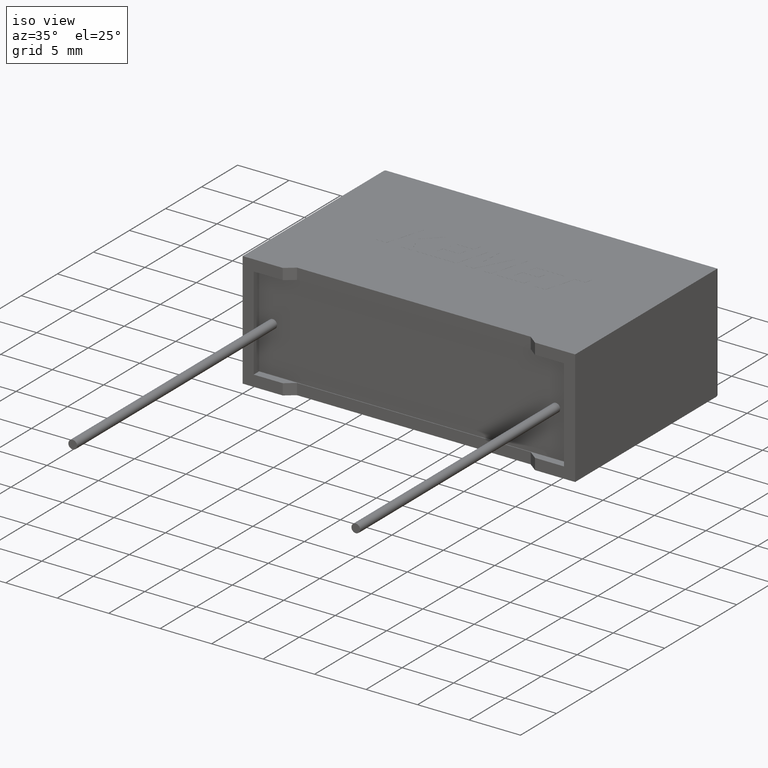
[diagram: clean part render]
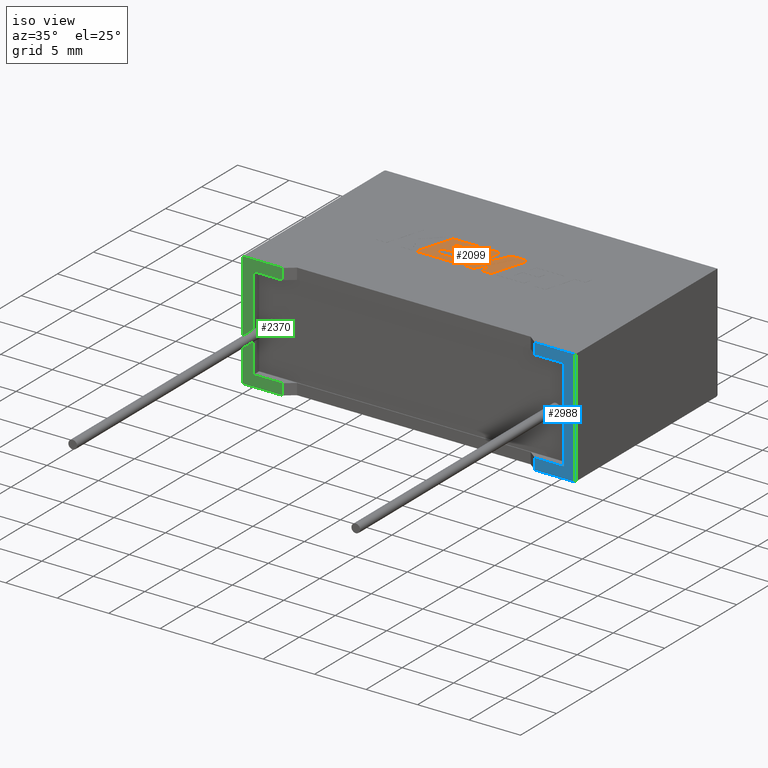
[diagram: same view with three faces highlighted in distinct colors, each labeled with its STEP entity id]
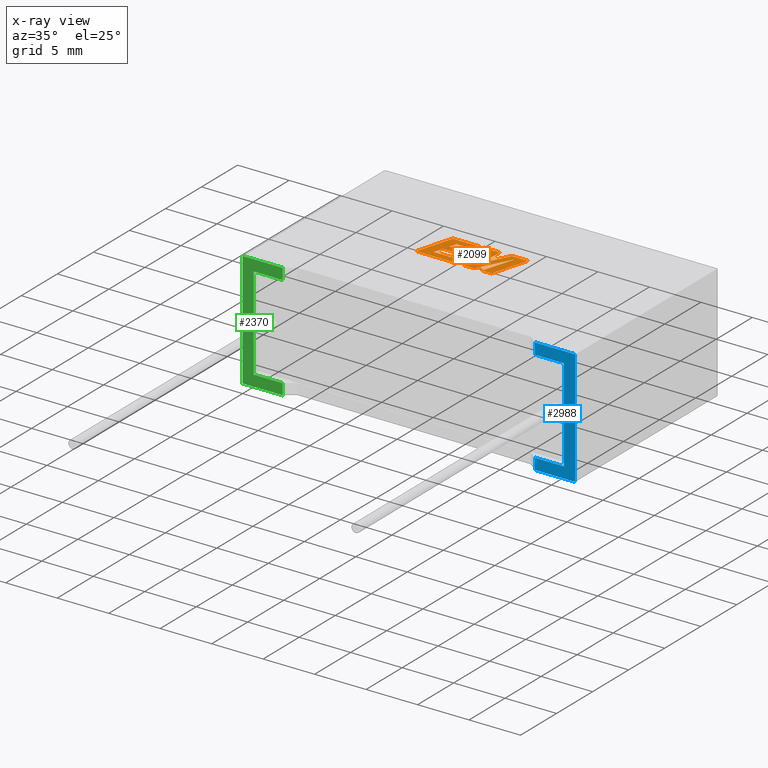
[diagram: x-ray of the same camera — body ghosted, the three highlighted faces saturated]
A machine part, iso view with three faces highlighted in distinct colors.
The next image is the same camera in x-ray (body ghosted, the three faces saturated) — at least one of them is partly hidden behind the body in this view.
Their STEP definitions:

[orange] entity #2099 — the highlighted planar face has unit normal (0, 0, -1).
#11 = LINE ( 'NONE', #172, #151 ) ;
#62 = DIRECTION ( 'NONE',  ( 0.4668459304955081000, 0.8843386665637679200, 0.0000000000000000000 ) ) ;
#66 = DIRECTION ( 'NONE',  ( 1.000000000000000000, 0.0000000000000000000, 0.0000000000000000000 ) ) ;
#80 = VERTEX_POINT ( 'NONE', #253 ) ;
#91 = VECTOR ( 'NONE', #2177, 1000.000000000000200 ) ;
#121 = CARTESIAN_POINT ( 'NONE',  ( 19.14513408663368900, 12.26690045535386600, 11.20500000000000000 ) ) ;
#129 = EDGE_CURVE ( 'NONE', #922, #1970, #2862, .T. ) ;
#142 = VECTOR ( 'NONE', #213, 1000.000000000000100 ) ;
#151 = VECTOR ( 'NONE', #2998, 1000.000000000000100 ) ;
#157 = CARTESIAN_POINT ( 'NONE',  ( 11.84124500571444100, 12.26690045535386600, 11.20500000000000000 ) ) ;
#167 = DIRECTION ( 'NONE',  ( 0.2763139702539113600, 0.9610674221107073900, 0.0000000000000000000 ) ) ;
#168 = ORIENTED_EDGE ( 'NONE', *, *, #1523, .T. ) ;
#172 = CARTESIAN_POINT ( 'NONE',  ( 15.62253906749800900, 11.86992497137884000, 11.20500000000000000 ) ) ;
#180 = EDGE_CURVE ( 'NONE', #3005, #1462, #874, .T. ) ;
#185 = CARTESIAN_POINT ( 'NONE',  ( 12.47426948060323100, 10.90533405807593100, 11.20500000000000000 ) ) ;
#187 = VECTOR ( 'NONE', #2567, 1000.000000000000200 ) ;
#210 = ORIENTED_EDGE ( 'NONE', *, *, #129, .T. ) ;
#213 = DIRECTION ( 'NONE',  ( -0.2762517575166416600, -0.9610853065513833600, 0.0000000000000000000 ) ) ;
#234 = CARTESIAN_POINT ( 'NONE',  ( 14.87486725729231400, 12.26690045535386600, 11.20500000000000000 ) ) ;
#253 = CARTESIAN_POINT ( 'NONE',  ( 16.27645733615719300, 9.682247318116898400, 11.20500000000000000 ) ) ;
#305 = ORIENTED_EDGE ( 'NONE', *, *, #868, .T. ) ;
#309 = LINE ( 'NONE', #1002, #91 ) ;
#315 = DIRECTION ( 'NONE',  ( -1.000000000000000000, 0.0000000000000000000, 0.0000000000000000000 ) ) ;
#326 = CARTESIAN_POINT ( 'NONE',  ( 16.27645733615719300, 9.682247318116898400, 11.20500000000000000 ) ) ;
#337 = ORIENTED_EDGE ( 'NONE', *, *, #354, .T. ) ;
#342 = CARTESIAN_POINT ( 'NONE',  ( 14.31841734785612800, 11.57825739074300800, 11.20500000000000000 ) ) ;
#354 = EDGE_CURVE ( 'NONE', #973, #80, #674, .T. ) ;
#367 = VERTEX_POINT ( 'NONE', #1281 ) ;
#421 = VERTEX_POINT ( 'NONE', #2492 ) ;
#433 = DIRECTION ( 'NONE',  ( 0.2746459304916892800, 0.9615454294334481200, 0.0000000000000000000 ) ) ;
#441 = ORIENTED_EDGE ( 'NONE', *, *, #1945, .T. ) ;
#442 = EDGE_CURVE ( 'NONE', #1565, #2027, #1144, .T. ) ;
#457 = ORIENTED_EDGE ( 'NONE', *, *, #770, .T. ) ;
#460 = VECTOR ( 'NONE', #1991, 1000.000000000000100 ) ;
#463 = DIRECTION ( 'NONE',  ( 1.000000000000000000, 4.783739767952859000E-016, 0.0000000000000000000 ) ) ;
#479 = VERTEX_POINT ( 'NONE', #867 ) ;
#485 = ORIENTED_EDGE ( 'NONE', *, *, #2647, .T. ) ;
#534 = LINE ( 'NONE', #2697, #1865 ) ;
#545 = DIRECTION ( 'NONE',  ( 1.000000000000000000, 0.0000000000000000000, 0.0000000000000000000 ) ) ;
#558 = DIRECTION ( 'NONE',  ( 0.05375259206908576700, 0.9985542843760946100, 0.0000000000000000000 ) ) ;
#565 = VECTOR ( 'NONE', #1586, 1000.000000000000000 ) ;
#567 = VECTOR ( 'NONE', #1992, 1000.000000000000000 ) ;
#581 = CARTESIAN_POINT ( 'NONE',  ( 17.55836071105327500, 12.26690045535386600, 11.20500000000000000 ) ) ;
#584 = EDGE_CURVE ( 'NONE', #367, #922, #752, .T. ) ;
#589 = VERTEX_POINT ( 'NONE', #2838 ) ;
#596 = CARTESIAN_POINT ( 'NONE',  ( 14.69772600633339400, 8.649029999999887900, 11.20500000000000000 ) ) ;
#610 = CARTESIAN_POINT ( 'NONE',  ( 18.10496965447793000, 8.649029999999887900, 11.20500000000000000 ) ) ;
#621 = CARTESIAN_POINT ( 'NONE',  ( 14.51400645488465300, 12.26690045535386600, 11.20500000000000000 ) ) ;
#625 = VERTEX_POINT ( 'NONE', #1696 ) ;
#674 = LINE ( 'NONE', #1512, #2963 ) ;
#708 = DIRECTION ( 'NONE',  ( -1.000000000000000000, 0.0000000000000000000, 0.0000000000000000000 ) ) ;
#737 = EDGE_CURVE ( 'NONE', #1462, #625, #309, .T. ) ;
#752 = LINE ( 'NONE', #1608, #2410 ) ;
#768 = DIRECTION ( 'NONE',  ( -1.000000000000000000, 0.0000000000000000000, 0.0000000000000000000 ) ) ;
#770 = EDGE_CURVE ( 'NONE', #2021, #1891, #2829, .T. ) ;
#772 = CARTESIAN_POINT ( 'NONE',  ( 15.44199866117102900, 8.649029999999887900, 11.20500000000000000 ) ) ;
#774 = EDGE_CURVE ( 'NONE', #2821, #2015, #1015, .T. ) ;
#806 = CARTESIAN_POINT ( 'NONE',  ( 17.18561284736853500, 8.649029999999887900, 11.20500000000000000 ) ) ;
#821 = CARTESIAN_POINT ( 'NONE',  ( 12.28345459587228900, 10.23651391646099300, 11.20500000000000000 ) ) ;
#829 = DIRECTION ( 'NONE',  ( -0.4443210308329518200, -0.8958676361826802800, 0.0000000000000000000 ) ) ;
#838 = VECTOR ( 'NONE', #433, 1000.000000000000100 ) ;
#867 = CARTESIAN_POINT ( 'NONE',  ( 14.03280004892295100, 9.337332048739172700, 11.20500000000000000 ) ) ;
#868 = EDGE_CURVE ( 'NONE', #2027, #973, #2791, .T. ) ;
#871 = CARTESIAN_POINT ( 'NONE',  ( 12.67007859787552300, 11.57825739074300800, 11.20500000000000000 ) ) ;
#874 = LINE ( 'NONE', #2351, #1350 ) ;
#880 = CARTESIAN_POINT ( 'NONE',  ( 10.80016752814025500, 8.649029999999887900, 11.20500000000000000 ) ) ;
#922 = VERTEX_POINT ( 'NONE', #185 ) ;
#944 = LINE ( 'NONE', #2753, #1307 ) ;
#973 = VERTEX_POINT ( 'NONE', #581 ) ;
#976 = EDGE_CURVE ( 'NONE', #979, #1525, #1618, .T. ) ;
#979 = VERTEX_POINT ( 'NONE', #2166 ) ;
#991 = CARTESIAN_POINT ( 'NONE',  ( 12.67007859787552300, 11.57825739074300800, 11.20500000000000000 ) ) ;
#992 = VECTOR ( 'NONE', #558, 1000.000000000000100 ) ;
#1002 = CARTESIAN_POINT ( 'NONE',  ( 14.69772600633339400, 8.649029999999887900, 11.20500000000000000 ) ) ;
#1015 = LINE ( 'NONE', #1947, #2603 ) ;
#1027 = CARTESIAN_POINT ( 'NONE',  ( -0.3926869100054561400, -3.060840540429609300, 11.20500000000000000 ) ) ;
#1044 = ORIENTED_EDGE ( 'NONE', *, *, #1403, .T. ) ;
#1122 = ORIENTED_EDGE ( 'NONE', *, *, #1500, .T. ) ;
#1125 = EDGE_LOOP ( 'NONE', ( #305, #337, #3047, #457, #3040, #168, #2507, #2686, #1362, #2438, #210, #2784, #2874, #485, #1122, #2736, #1677, #1164, #441, #1044, #2029, #1622, #1464 ) ) ;
#1144 = LINE ( 'NONE', #610, #1691 ) ;
#1164 = ORIENTED_EDGE ( 'NONE', *, *, #2582, .T. ) ;
#1231 = VERTEX_POINT ( 'NONE', #157 ) ;
#1249 = CARTESIAN_POINT ( 'NONE',  ( 13.83606688863586200, 10.23651391646099300, 11.20500000000000000 ) ) ;
#1254 = DIRECTION ( 'NONE',  ( -1.000000000000000000, 0.0000000000000000000, 0.0000000000000000000 ) ) ;
#1258 = PLANE ( 'NONE',  #1993 ) ;
#1281 = CARTESIAN_POINT ( 'NONE',  ( 14.02710178361076900, 10.90533405807593100, 11.20500000000000000 ) ) ;
#1307 = VECTOR ( 'NONE', #2764, 1000.000000000000100 ) ;
#1350 = VECTOR ( 'NONE', #463, 1000.000000000000000 ) ;
#1357 = CARTESIAN_POINT ( 'NONE',  ( 12.02725266658700900, 9.337332048739172700, 11.20500000000000000 ) ) ;
#1362 = ORIENTED_EDGE ( 'NONE', *, *, #2470, .T. ) ;
#1403 = EDGE_CURVE ( 'NONE', #1638, #589, #2612, .T. ) ;
#1446 = LINE ( 'NONE', #2613, #2641 ) ;
#1462 = VERTEX_POINT ( 'NONE', #596 ) ;
#1464 = ORIENTED_EDGE ( 'NONE', *, *, #442, .T. ) ;
#1500 = EDGE_CURVE ( 'NONE', #1231, #3005, #534, .T. ) ;
#1512 = CARTESIAN_POINT ( 'NONE',  ( 17.55836071105327500, 12.26690045535386600, 11.20500000000000000 ) ) ;
#1523 = EDGE_CURVE ( 'NONE', #479, #421, #2869, .T. ) ;
#1525 = VERTEX_POINT ( 'NONE', #2711 ) ;
#1565 = VERTEX_POINT ( 'NONE', #2985 ) ;
#1579 = CARTESIAN_POINT ( 'NONE',  ( 13.83606688863586200, 10.23651391646099300, 11.20500000000000000 ) ) ;
#1586 = DIRECTION ( 'NONE',  ( 1.000000000000000000, 0.0000000000000000000, 0.0000000000000000000 ) ) ;
#1596 = VECTOR ( 'NONE', #2807, 1000.000000000000100 ) ;
#1608 = CARTESIAN_POINT ( 'NONE',  ( 14.02710178361076900, 10.90533405807593100, 11.20500000000000000 ) ) ;
#1618 = LINE ( 'NONE', #342, #460 ) ;
#1622 = ORIENTED_EDGE ( 'NONE', *, *, #1852, .T. ) ;
#1638 = VERTEX_POINT ( 'NONE', #1788 ) ;
#1666 = EDGE_CURVE ( 'NONE', #421, #2821, #2866, .T. ) ;
#1677 = ORIENTED_EDGE ( 'NONE', *, *, #737, .T. ) ;
#1691 = VECTOR ( 'NONE', #167, 1000.000000000000000 ) ;
#1696 = CARTESIAN_POINT ( 'NONE',  ( 15.62253906749800900, 11.86992497137884000, 11.20500000000000000 ) ) ;
#1706 = CARTESIAN_POINT ( 'NONE',  ( 16.41559028856627500, 12.26690045535386600, 11.20500000000000000 ) ) ;
#1768 = EDGE_CURVE ( 'NONE', #1970, #979, #2486, .T. ) ;
#1788 = CARTESIAN_POINT ( 'NONE',  ( 16.40649056986196900, 8.649029999999887900, 11.20500000000000000 ) ) ;
#1852 = EDGE_CURVE ( 'NONE', #2053, #1565, #1446, .T. ) ;
#1860 = LINE ( 'NONE', #326, #992 ) ;
#1865 = VECTOR ( 'NONE', #1980, 999.9999999999998900 ) ;
#1891 = VERTEX_POINT ( 'NONE', #2141 ) ;
#1894 = VECTOR ( 'NONE', #66, 1000.000000000000000 ) ;
#1933 = LINE ( 'NONE', #621, #2727 ) ;
#1945 = EDGE_CURVE ( 'NONE', #2664, #1638, #1956, .T. ) ;
#1947 = CARTESIAN_POINT ( 'NONE',  ( 12.28345459587228900, 10.23651391646099300, 11.20500000000000000 ) ) ;
#1956 = LINE ( 'NONE', #772, #1894 ) ;
#1970 = VERTEX_POINT ( 'NONE', #991 ) ;
#1971 = DIRECTION ( 'NONE',  ( 0.0000000000000000000, 0.0000000000000000000, -1.000000000000000000 ) ) ;
#1980 = DIRECTION ( 'NONE',  ( -0.2765379750249963900, -0.9610029908221278100, 0.0000000000000000000 ) ) ;
#1991 = DIRECTION ( 'NONE',  ( 0.2732148821746286400, 0.9619530280415482500, 0.0000000000000000000 ) ) ;
#1992 = DIRECTION ( 'NONE',  ( -1.000000000000000000, 0.0000000000000000000, 0.0000000000000000000 ) ) ;
#1993 = AXIS2_PLACEMENT_3D ( 'NONE', #1027, #1971, #315 ) ;
#2006 = LINE ( 'NONE', #234, #142 ) ;
#2015 = VERTEX_POINT ( 'NONE', #1249 ) ;
#2021 = VERTEX_POINT ( 'NONE', #2943 ) ;
#2027 = VERTEX_POINT ( 'NONE', #121 ) ;
#2029 = ORIENTED_EDGE ( 'NONE', *, *, #2464, .T. ) ;
#2053 = VERTEX_POINT ( 'NONE', #806 ) ;
#2086 = VECTOR ( 'NONE', #62, 1000.000000000000100 ) ;
#2090 = EDGE_CURVE ( 'NONE', #80, #2021, #1860, .T. ) ;
#2099 = ADVANCED_FACE ( 'NONE', ( #3014 ), #1258, .F. ) ;
#2141 = CARTESIAN_POINT ( 'NONE',  ( 14.87486725729231400, 12.26690045535386600, 11.20500000000000000 ) ) ;
#2166 = CARTESIAN_POINT ( 'NONE',  ( 14.31841734785612800, 11.57825739074300800, 11.20500000000000000 ) ) ;
#2177 = DIRECTION ( 'NONE',  ( 0.2759782365590697800, 0.9611638845408966300, 0.0000000000000000000 ) ) ;
#2185 = VECTOR ( 'NONE', #768, 1000.000000000000000 ) ;
#2296 = VECTOR ( 'NONE', #1254, 1000.000000000000000 ) ;
#2351 = CARTESIAN_POINT ( 'NONE',  ( 10.80016752814025500, 8.649029999999887900, 11.20500000000000000 ) ) ;
#2410 = VECTOR ( 'NONE', #708, 1000.000000000000000 ) ;
#2438 = ORIENTED_EDGE ( 'NONE', *, *, #584, .T. ) ;
#2464 = EDGE_CURVE ( 'NONE', #589, #2053, #944, .T. ) ;
#2470 = EDGE_CURVE ( 'NONE', #2015, #367, #2548, .T. ) ;
#2486 = LINE ( 'NONE', #871, #565 ) ;
#2492 = CARTESIAN_POINT ( 'NONE',  ( 12.02725266658700900, 9.337332048739172700, 11.20500000000000000 ) ) ;
#2499 = CARTESIAN_POINT ( 'NONE',  ( 14.03280004892295100, 9.337332048739172700, 11.20500000000000000 ) ) ;
#2507 = ORIENTED_EDGE ( 'NONE', *, *, #1666, .T. ) ;
#2548 = LINE ( 'NONE', #1579, #838 ) ;
#2551 = CARTESIAN_POINT ( 'NONE',  ( 12.47426948060323100, 10.90533405807593100, 11.20500000000000000 ) ) ;
#2567 = DIRECTION ( 'NONE',  ( 0.2740217765954066600, 0.9617234872620595800, 0.0000000000000000000 ) ) ;
#2582 = EDGE_CURVE ( 'NONE', #625, #2664, #11, .T. ) ;
#2603 = VECTOR ( 'NONE', #545, 1000.000000000000000 ) ;
#2612 = LINE ( 'NONE', #2858, #2086 ) ;
#2613 = CARTESIAN_POINT ( 'NONE',  ( 17.18561284736853500, 8.649029999999887900, 11.20500000000000000 ) ) ;
#2640 = CARTESIAN_POINT ( 'NONE',  ( 15.44199866117102900, 8.649029999999887900, 11.20500000000000000 ) ) ;
#2641 = VECTOR ( 'NONE', #2855, 1000.000000000000000 ) ;
#2647 = EDGE_CURVE ( 'NONE', #1525, #1231, #1933, .T. ) ;
#2664 = VERTEX_POINT ( 'NONE', #2640 ) ;
#2686 = ORIENTED_EDGE ( 'NONE', *, *, #774, .T. ) ;
#2692 = CARTESIAN_POINT ( 'NONE',  ( 19.14513408663368900, 12.26690045535386600, 11.20500000000000000 ) ) ;
#2697 = CARTESIAN_POINT ( 'NONE',  ( 11.84124500571444100, 12.26690045535386600, 11.20500000000000000 ) ) ;
#2711 = CARTESIAN_POINT ( 'NONE',  ( 14.51400645488465300, 12.26690045535386600, 11.20500000000000000 ) ) ;
#2727 = VECTOR ( 'NONE', #3007, 1000.000000000000000 ) ;
#2736 = ORIENTED_EDGE ( 'NONE', *, *, #180, .T. ) ;
#2753 = CARTESIAN_POINT ( 'NONE',  ( 18.11500212160962400, 11.88543569358202500, 11.20500000000000000 ) ) ;
#2764 = DIRECTION ( 'NONE',  ( -0.2760118818968580500, -0.9611542233438683500, 0.0000000000000000000 ) ) ;
#2784 = ORIENTED_EDGE ( 'NONE', *, *, #1768, .T. ) ;
#2791 = LINE ( 'NONE', #2692, #2296 ) ;
#2807 = DIRECTION ( 'NONE',  ( 0.2793947940878294700, 0.9601763114327593900, 0.0000000000000000000 ) ) ;
#2821 = VERTEX_POINT ( 'NONE', #821 ) ;
#2829 = LINE ( 'NONE', #1706, #2185 ) ;
#2838 = CARTESIAN_POINT ( 'NONE',  ( 18.11500212160962400, 11.88543569358202500, 11.20500000000000000 ) ) ;
#2855 = DIRECTION ( 'NONE',  ( 1.000000000000000000, 0.0000000000000000000, 0.0000000000000000000 ) ) ;
#2858 = CARTESIAN_POINT ( 'NONE',  ( 16.40649056986196900, 8.649029999999887900, 11.20500000000000000 ) ) ;
#2862 = LINE ( 'NONE', #2551, #1596 ) ;
#2866 = LINE ( 'NONE', #1357, #187 ) ;
#2869 = LINE ( 'NONE', #2499, #567 ) ;
#2874 = ORIENTED_EDGE ( 'NONE', *, *, #976, .T. ) ;
#2943 = CARTESIAN_POINT ( 'NONE',  ( 16.41559028856627500, 12.26690045535386600, 11.20500000000000000 ) ) ;
#2963 = VECTOR ( 'NONE', #829, 1000.000000000000000 ) ;
#2985 = CARTESIAN_POINT ( 'NONE',  ( 18.10496965447793000, 8.649029999999887900, 11.20500000000000000 ) ) ;
#2998 = DIRECTION ( 'NONE',  ( -0.05596501978069370200, -0.9984327301130239100, 0.0000000000000000000 ) ) ;
#3005 = VERTEX_POINT ( 'NONE', #880 ) ;
#3007 = DIRECTION ( 'NONE',  ( -1.000000000000000000, 0.0000000000000000000, 0.0000000000000000000 ) ) ;
#3014 = FACE_OUTER_BOUND ( 'NONE', #1125, .T. ) ;
#3040 = ORIENTED_EDGE ( 'NONE', *, *, #3055, .T. ) ;
#3047 = ORIENTED_EDGE ( 'NONE', *, *, #2090, .T. ) ;
#3055 = EDGE_CURVE ( 'NONE', #1891, #479, #2006, .T. ) ;

[blue] entity #2988 — the highlighted planar face has unit normal (0, 1, 0).
#14 = EDGE_CURVE ( 'NONE', #161, #2781, #316, .T. ) ;
#22 = VERTEX_POINT ( 'NONE', #260 ) ;
#37 = CARTESIAN_POINT ( 'NONE',  ( 31.22333344099999800, 0.0000000000000000000, 10.12333344100000000 ) ) ;
#76 = CARTESIAN_POINT ( 'NONE',  ( 32.29999999999999700, 0.0000000000000000000, 0.0000000000000000000 ) ) ;
#161 = VERTEX_POINT ( 'NONE', #231 ) ;
#166 = VECTOR ( 'NONE', #1784, 1000.000000000000000 ) ;
#229 = ORIENTED_EDGE ( 'NONE', *, *, #2604, .F. ) ;
#231 = CARTESIAN_POINT ( 'NONE',  ( 31.22333344099999800, 0.0000000000000000000, 10.12333344100000000 ) ) ;
#258 = VECTOR ( 'NONE', #2327, 1000.000000000000000 ) ;
#260 = CARTESIAN_POINT ( 'NONE',  ( 28.39999999999999900, 2.388061258337336700E-016, 0.0000000000000000000 ) ) ;
#275 = VERTEX_POINT ( 'NONE', #975 ) ;
#301 = CARTESIAN_POINT ( 'NONE',  ( 0.0000000000000000000, 0.0000000000000000000, 0.0000000000000000000 ) ) ;
#313 = DIRECTION ( 'NONE',  ( 1.000000000000000000, 0.0000000000000000000, 0.0000000000000000000 ) ) ;
#316 = LINE ( 'NONE', #37, #258 ) ;
#339 = LINE ( 'NONE', #2735, #528 ) ;
#341 = CARTESIAN_POINT ( 'NONE',  ( 28.39999999999999900, 2.388061258337336700E-016, 1.076666558999999500 ) ) ;
#444 = CARTESIAN_POINT ( 'NONE',  ( 28.39999999999999900, 2.388061258337336700E-016, 11.19999999999999900 ) ) ;
#516 = EDGE_CURVE ( 'NONE', #878, #275, #2958, .T. ) ;
#520 = EDGE_CURVE ( 'NONE', #22, #878, #339, .T. ) ;
#528 = VECTOR ( 'NONE', #2488, 1000.000000000000000 ) ;
#568 = CARTESIAN_POINT ( 'NONE',  ( 31.22333344099999400, 0.0000000000000000000, 1.076666558999999500 ) ) ;
#618 = LINE ( 'NONE', #2611, #1004 ) ;
#619 = VERTEX_POINT ( 'NONE', #76 ) ;
#714 = VECTOR ( 'NONE', #313, 1000.000000000000000 ) ;
#730 = FACE_OUTER_BOUND ( 'NONE', #2627, .T. ) ;
#787 = EDGE_CURVE ( 'NONE', #22, #619, #2110, .T. ) ;
#835 = DIRECTION ( 'NONE',  ( 1.000000000000000000, 0.0000000000000000000, 0.0000000000000000000 ) ) ;
#870 = DIRECTION ( 'NONE',  ( 0.0000000000000000000, 1.000000000000000000, 0.0000000000000000000 ) ) ;
#878 = VERTEX_POINT ( 'NONE', #341 ) ;
#966 = DIRECTION ( 'NONE',  ( 1.000000000000000000, 0.0000000000000000000, 0.0000000000000000000 ) ) ;
#975 = CARTESIAN_POINT ( 'NONE',  ( 31.22333344099999400, 0.0000000000000000000, 1.076666558999999500 ) ) ;
#1004 = VECTOR ( 'NONE', #966, 1000.000000000000000 ) ;
#1054 = PLANE ( 'NONE',  #1553 ) ;
#1067 = LINE ( 'NONE', #568, #2897 ) ;
#1091 = DIRECTION ( 'NONE',  ( -0.0000000000000000000, -0.0000000000000000000, 1.000000000000000000 ) ) ;
#1099 = DIRECTION ( 'NONE',  ( 0.0000000000000000000, -0.0000000000000000000, 1.000000000000000000 ) ) ;
#1131 = EDGE_CURVE ( 'NONE', #2781, #1276, #2405, .T. ) ;
#1175 = LINE ( 'NONE', #2290, #166 ) ;
#1183 = EDGE_CURVE ( 'NONE', #2890, #619, #1175, .T. ) ;
#1216 = ORIENTED_EDGE ( 'NONE', *, *, #1183, .F. ) ;
#1276 = VERTEX_POINT ( 'NONE', #444 ) ;
#1372 = VECTOR ( 'NONE', #835, 1000.000000000000000 ) ;
#1553 = AXIS2_PLACEMENT_3D ( 'NONE', #2288, #870, #1099 ) ;
#1610 = ORIENTED_EDGE ( 'NONE', *, *, #2094, .F. ) ;
#1754 = CARTESIAN_POINT ( 'NONE',  ( 28.39999999999999900, 2.388061258337336700E-016, 10.12333344100000000 ) ) ;
#1784 = DIRECTION ( 'NONE',  ( -0.0000000000000000000, -0.0000000000000000000, -1.000000000000000000 ) ) ;
#2060 = CARTESIAN_POINT ( 'NONE',  ( 32.29999999999999700, 0.0000000000000000000, 11.19999999999999900 ) ) ;
#2094 = EDGE_CURVE ( 'NONE', #275, #161, #1067, .T. ) ;
#2105 = ORIENTED_EDGE ( 'NONE', *, *, #1131, .F. ) ;
#2110 = LINE ( 'NONE', #301, #714 ) ;
#2288 = CARTESIAN_POINT ( 'NONE',  ( 0.0000000000000000000, 0.0000000000000000000, 11.19999999999999900 ) ) ;
#2290 = CARTESIAN_POINT ( 'NONE',  ( 32.29999999999999700, 0.0000000000000000000, 11.19999999999999900 ) ) ;
#2327 = DIRECTION ( 'NONE',  ( -1.000000000000000000, 0.0000000000000000000, -1.150855902423214700E-016 ) ) ;
#2405 = LINE ( 'NONE', #3027, #2825 ) ;
#2488 = DIRECTION ( 'NONE',  ( -0.0000000000000000000, -0.0000000000000000000, 1.000000000000000000 ) ) ;
#2543 = CARTESIAN_POINT ( 'NONE',  ( 1.076666559000000000, 0.0000000000000000000, 1.076666558999999500 ) ) ;
#2602 = ORIENTED_EDGE ( 'NONE', *, *, #787, .T. ) ;
#2604 = EDGE_CURVE ( 'NONE', #1276, #2890, #618, .T. ) ;
#2611 = CARTESIAN_POINT ( 'NONE',  ( 0.0000000000000000000, 0.0000000000000000000, 11.19999999999999900 ) ) ;
#2627 = EDGE_LOOP ( 'NONE', ( #2750, #2602, #1216, #229, #2105, #2774, #1610, #2982 ) ) ;
#2735 = CARTESIAN_POINT ( 'NONE',  ( 28.39999999999999900, 2.388061258337336700E-016, 0.0000000000000000000 ) ) ;
#2750 = ORIENTED_EDGE ( 'NONE', *, *, #520, .F. ) ;
#2774 = ORIENTED_EDGE ( 'NONE', *, *, #14, .F. ) ;
#2781 = VERTEX_POINT ( 'NONE', #1754 ) ;
#2825 = VECTOR ( 'NONE', #1091, 1000.000000000000000 ) ;
#2890 = VERTEX_POINT ( 'NONE', #2060 ) ;
#2897 = VECTOR ( 'NONE', #2953, 1000.000000000000000 ) ;
#2953 = DIRECTION ( 'NONE',  ( 3.835055493042099000E-016, 0.0000000000000000000, 1.000000000000000000 ) ) ;
#2958 = LINE ( 'NONE', #2543, #1372 ) ;
#2982 = ORIENTED_EDGE ( 'NONE', *, *, #516, .F. ) ;
#2988 = ADVANCED_FACE ( 'NONE', ( #730 ), #1054, .F. ) ;
#3027 = CARTESIAN_POINT ( 'NONE',  ( 28.39999999999999900, 2.388061258337336700E-016, 0.0000000000000000000 ) ) ;

[green] entity #2370 — the highlighted planar face has unit normal (0, 1, 0).
#24 = LINE ( 'NONE', #1031, #1406 ) ;
#97 = CARTESIAN_POINT ( 'NONE',  ( 3.899999999999998100, 2.388061258337336700E-016, 0.0000000000000000000 ) ) ;
#98 = CARTESIAN_POINT ( 'NONE',  ( 1.076666559000000000, 0.0000000000000000000, 1.076666558999999500 ) ) ;
#127 = VERTEX_POINT ( 'NONE', #2798 ) ;
#133 = VECTOR ( 'NONE', #1730, 1000.000000000000000 ) ;
#145 = VERTEX_POINT ( 'NONE', #1148 ) ;
#271 = DIRECTION ( 'NONE',  ( 1.000000000000000000, 0.0000000000000000000, 0.0000000000000000000 ) ) ;
#311 = VECTOR ( 'NONE', #1547, 1000.000000000000000 ) ;
#331 = VERTEX_POINT ( 'NONE', #569 ) ;
#362 = VERTEX_POINT ( 'NONE', #98 ) ;
#428 = EDGE_CURVE ( 'NONE', #1451, #1247, #1767, .T. ) ;
#506 = DIRECTION ( 'NONE',  ( -1.000000000000000000, 0.0000000000000000000, -1.150855902423214700E-016 ) ) ;
#569 = CARTESIAN_POINT ( 'NONE',  ( 3.899999999999998100, 2.388061258337336700E-016, 0.0000000000000000000 ) ) ;
#690 = VECTOR ( 'NONE', #2301, 1000.000000000000000 ) ;
#721 = LINE ( 'NONE', #2403, #2262 ) ;
#722 = AXIS2_PLACEMENT_3D ( 'NONE', #1321, #1590, #1825 ) ;
#732 = ORIENTED_EDGE ( 'NONE', *, *, #887, .T. ) ;
#751 = ORIENTED_EDGE ( 'NONE', *, *, #2938, .F. ) ;
#872 = ORIENTED_EDGE ( 'NONE', *, *, #2174, .T. ) ;
#873 = VECTOR ( 'NONE', #506, 1000.000000000000000 ) ;
#887 = EDGE_CURVE ( 'NONE', #2328, #331, #24, .T. ) ;
#951 = VECTOR ( 'NONE', #2243, 1000.000000000000000 ) ;
#1031 = CARTESIAN_POINT ( 'NONE',  ( 0.0000000000000000000, 0.0000000000000000000, 0.0000000000000000000 ) ) ;
#1070 = CARTESIAN_POINT ( 'NONE',  ( 0.0000000000000000000, 0.0000000000000000000, 0.0000000000000000000 ) ) ;
#1109 = VECTOR ( 'NONE', #271, 1000.000000000000000 ) ;
#1148 = CARTESIAN_POINT ( 'NONE',  ( 3.899999999999998100, 2.388061258337336700E-016, 10.12333344099999600 ) ) ;
#1232 = LINE ( 'NONE', #2799, #873 ) ;
#1247 = VERTEX_POINT ( 'NONE', #2277 ) ;
#1321 = CARTESIAN_POINT ( 'NONE',  ( 0.0000000000000000000, 0.0000000000000000000, 11.19999999999999900 ) ) ;
#1406 = VECTOR ( 'NONE', #2709, 1000.000000000000000 ) ;
#1451 = VERTEX_POINT ( 'NONE', #1497 ) ;
#1497 = CARTESIAN_POINT ( 'NONE',  ( 0.0000000000000000000, 0.0000000000000000000, 11.19999999999999900 ) ) ;
#1521 = LINE ( 'NONE', #1796, #690 ) ;
#1547 = DIRECTION ( 'NONE',  ( 1.000000000000000000, 0.0000000000000000000, 0.0000000000000000000 ) ) ;
#1577 = LINE ( 'NONE', #2734, #951 ) ;
#1590 = DIRECTION ( 'NONE',  ( 0.0000000000000000000, 1.000000000000000000, 0.0000000000000000000 ) ) ;
#1637 = CARTESIAN_POINT ( 'NONE',  ( 1.076666559000000000, 0.0000000000000000000, 1.076666558999999500 ) ) ;
#1694 = LINE ( 'NONE', #97, #133 ) ;
#1699 = DIRECTION ( 'NONE',  ( -0.0000000000000000000, -0.0000000000000000000, 1.000000000000000000 ) ) ;
#1709 = ORIENTED_EDGE ( 'NONE', *, *, #428, .F. ) ;
#1730 = DIRECTION ( 'NONE',  ( -0.0000000000000000000, -0.0000000000000000000, 1.000000000000000000 ) ) ;
#1746 = FACE_OUTER_BOUND ( 'NONE', #2850, .T. ) ;
#1767 = LINE ( 'NONE', #1793, #311 ) ;
#1793 = CARTESIAN_POINT ( 'NONE',  ( 0.0000000000000000000, 0.0000000000000000000, 11.19999999999999900 ) ) ;
#1796 = CARTESIAN_POINT ( 'NONE',  ( 1.076666559000000000, 0.0000000000000000000, 10.12333344099999600 ) ) ;
#1818 = EDGE_CURVE ( 'NONE', #362, #2467, #1957, .T. ) ;
#1825 = DIRECTION ( 'NONE',  ( 0.0000000000000000000, -0.0000000000000000000, 1.000000000000000000 ) ) ;
#1943 = ORIENTED_EDGE ( 'NONE', *, *, #1981, .T. ) ;
#1957 = LINE ( 'NONE', #1637, #1109 ) ;
#1981 = EDGE_CURVE ( 'NONE', #145, #1247, #721, .T. ) ;
#2047 = EDGE_CURVE ( 'NONE', #331, #2467, #1694, .T. ) ;
#2051 = PLANE ( 'NONE',  #722 ) ;
#2174 = EDGE_CURVE ( 'NONE', #1451, #2328, #1577, .T. ) ;
#2243 = DIRECTION ( 'NONE',  ( -0.0000000000000000000, -0.0000000000000000000, -1.000000000000000000 ) ) ;
#2262 = VECTOR ( 'NONE', #1699, 1000.000000000000000 ) ;
#2277 = CARTESIAN_POINT ( 'NONE',  ( 3.899999999999998100, 2.388061258337336700E-016, 11.19999999999999900 ) ) ;
#2301 = DIRECTION ( 'NONE',  ( 0.0000000000000000000, 0.0000000000000000000, -1.000000000000000000 ) ) ;
#2328 = VERTEX_POINT ( 'NONE', #1070 ) ;
#2364 = ORIENTED_EDGE ( 'NONE', *, *, #1818, .F. ) ;
#2370 = ADVANCED_FACE ( 'NONE', ( #1746 ), #2051, .F. ) ;
#2403 = CARTESIAN_POINT ( 'NONE',  ( 3.899999999999998100, 2.388061258337336700E-016, 0.0000000000000000000 ) ) ;
#2467 = VERTEX_POINT ( 'NONE', #2863 ) ;
#2541 = EDGE_CURVE ( 'NONE', #145, #127, #1232, .T. ) ;
#2709 = DIRECTION ( 'NONE',  ( 1.000000000000000000, 0.0000000000000000000, 0.0000000000000000000 ) ) ;
#2734 = CARTESIAN_POINT ( 'NONE',  ( 0.0000000000000000000, 0.0000000000000000000, 11.19999999999999900 ) ) ;
#2795 = ORIENTED_EDGE ( 'NONE', *, *, #2047, .T. ) ;
#2798 = CARTESIAN_POINT ( 'NONE',  ( 1.076666559000000000, 0.0000000000000000000, 10.12333344099999600 ) ) ;
#2799 = CARTESIAN_POINT ( 'NONE',  ( 31.22333344099999800, 0.0000000000000000000, 10.12333344100000000 ) ) ;
#2850 = EDGE_LOOP ( 'NONE', ( #732, #2795, #2364, #751, #2915, #1943, #1709, #872 ) ) ;
#2863 = CARTESIAN_POINT ( 'NONE',  ( 3.899999999999998100, 2.388061258337336700E-016, 1.076666558999999500 ) ) ;
#2915 = ORIENTED_EDGE ( 'NONE', *, *, #2541, .F. ) ;
#2938 = EDGE_CURVE ( 'NONE', #127, #362, #1521, .T. ) ;